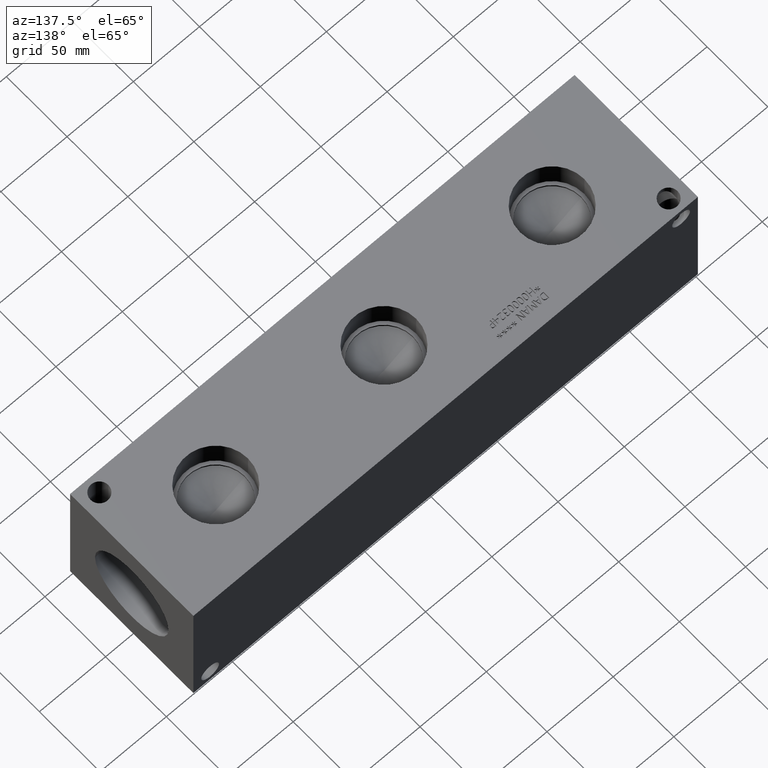
[diagram: clean part render]
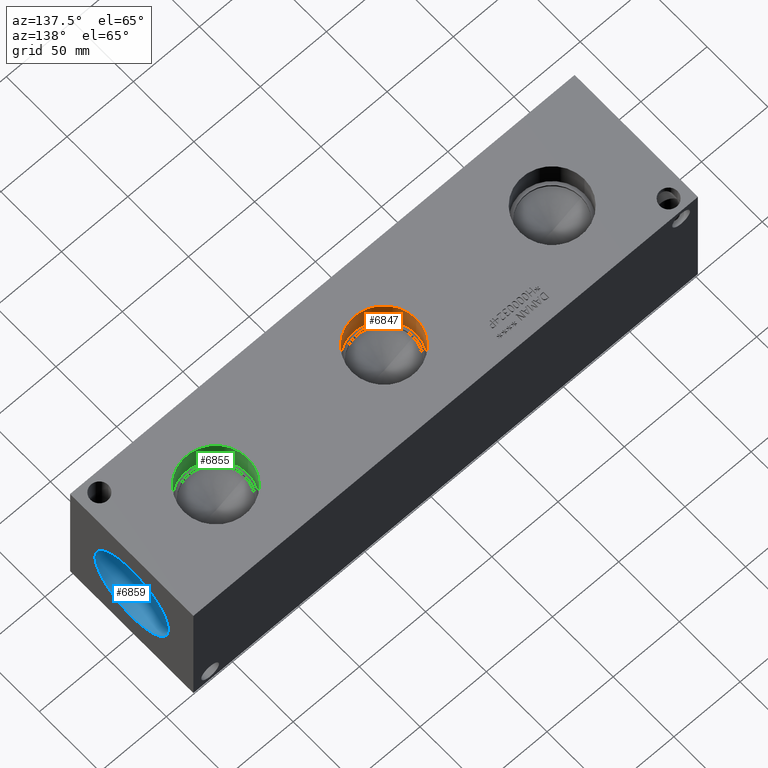
[diagram: same view with three faces highlighted in distinct colors, each labeled with its STEP entity id]
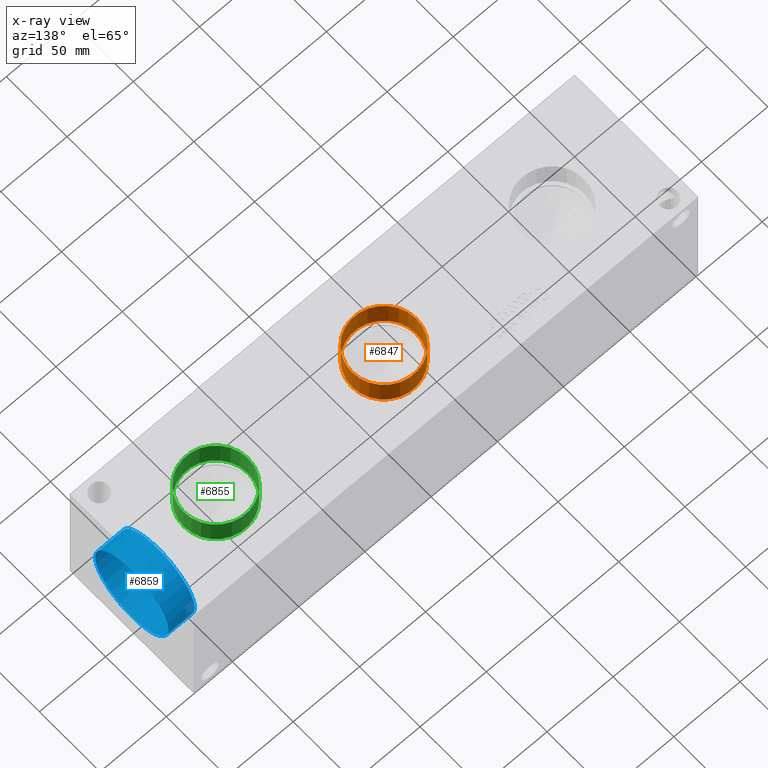
[diagram: x-ray of the same camera — body ghosted, the three highlighted faces saturated]
A machine part, auxiliary view with three faces highlighted in distinct colors.
The next image is the same camera in x-ray (body ghosted, the three faces saturated) — at least one of them is partly hidden behind the body in this view.
Their STEP definitions:

[orange] entity #6847 — the highlighted cylindrical surface (bore or boss wall) has radius 24.2824 mm, axis along (0, 0, 1).
#35=CYLINDRICAL_SURFACE('',#7143,24.2824);
#49=CIRCLE('',#6966,24.2824);
#50=CIRCLE('',#6967,24.2824);
#65=CIRCLE('',#7140,24.2824);
#66=CIRCLE('',#7141,24.2824);
#687=FACE_OUTER_BOUND('',#1066,.T.);
#1066=EDGE_LOOP('',(#6011,#6012,#6013,#6014,#6015,#6016));
#1776=LINE('',#11537,#2472);
#2472=VECTOR('',#8385,24.2824);
#2994=VERTEX_POINT('',#10559);
#2995=VERTEX_POINT('',#10560);
#3277=VERTEX_POINT('',#11530);
#3278=VERTEX_POINT('',#11531);
#3776=EDGE_CURVE('',#2994,#2995,#49,.T.);
#3777=EDGE_CURVE('',#2995,#2994,#50,.T.);
#4202=EDGE_CURVE('',#3277,#3278,#65,.T.);
#4203=EDGE_CURVE('',#3278,#3277,#66,.T.);
#4205=EDGE_CURVE('',#2995,#3278,#1776,.T.);
#6011=ORIENTED_EDGE('',*,*,#3776,.F.);
#6012=ORIENTED_EDGE('',*,*,#3777,.F.);
#6013=ORIENTED_EDGE('',*,*,#4205,.T.);
#6014=ORIENTED_EDGE('',*,*,#4202,.F.);
#6015=ORIENTED_EDGE('',*,*,#4203,.F.);
#6016=ORIENTED_EDGE('',*,*,#4205,.F.);
#6847=ADVANCED_FACE('',(#687),#35,.F.);
#6966=AXIS2_PLACEMENT_3D('',#10561,#7643,#7644);
#6967=AXIS2_PLACEMENT_3D('',#10562,#7645,#7646);
#7140=AXIS2_PLACEMENT_3D('',#11532,#8377,#8378);
#7141=AXIS2_PLACEMENT_3D('',#11533,#8379,#8380);
#7143=AXIS2_PLACEMENT_3D('',#11536,#8383,#8384);
#7643=DIRECTION('center_axis',(0.,0.,-1.));
#7644=DIRECTION('ref_axis',(1.,0.,0.));
#7645=DIRECTION('center_axis',(0.,0.,-1.));
#7646=DIRECTION('ref_axis',(1.,0.,0.));
#8377=DIRECTION('center_axis',(0.,0.,1.));
#8378=DIRECTION('ref_axis',(1.,0.,0.));
#8379=DIRECTION('center_axis',(0.,0.,1.));
#8380=DIRECTION('ref_axis',(1.,0.,0.));
#8383=DIRECTION('center_axis',(0.,0.,1.));
#8384=DIRECTION('ref_axis',(1.,0.,0.));
#8385=DIRECTION('',(0.,0.,-1.));
#10559=CARTESIAN_POINT('',(214.7824,50.8,101.6));
#10560=CARTESIAN_POINT('',(166.2176,50.8,101.6));
#10561=CARTESIAN_POINT('Origin',(190.5,50.8,101.6));
#10562=CARTESIAN_POINT('Origin',(190.5,50.8,101.6));
#11530=CARTESIAN_POINT('',(214.7824,50.8,82.0928));
#11531=CARTESIAN_POINT('',(166.2176,50.8,82.0928));
#11532=CARTESIAN_POINT('Origin',(190.5,50.8,82.0928));
#11533=CARTESIAN_POINT('Origin',(190.5,50.8,82.0928));
#11536=CARTESIAN_POINT('Origin',(190.5,50.8,91.8464));
#11537=CARTESIAN_POINT('',(166.2176,50.8,91.8464));

[blue] entity #6859 — the highlighted cylindrical surface (bore or boss wall) has radius 30.3149 mm, axis along (1, 0, 0).
#41=CYLINDRICAL_SURFACE('',#7170,30.3149);
#80=CIRCLE('',#7167,30.3149);
#81=CIRCLE('',#7168,30.3149);
#83=CIRCLE('',#7171,30.3149);
#84=CIRCLE('',#7172,30.3149);
#699=FACE_OUTER_BOUND('',#1081,.T.);
#1081=EDGE_LOOP('',(#6065,#6066,#6067,#6068,#6069,#6070));
#1785=LINE('',#11595,#2481);
#2481=VECTOR('',#8452,30.3149);
#3295=VERTEX_POINT('',#11584);
#3296=VERTEX_POINT('',#11585);
#3298=VERTEX_POINT('',#11591);
#3299=VERTEX_POINT('',#11592);
#4226=EDGE_CURVE('',#3295,#3296,#80,.T.);
#4227=EDGE_CURVE('',#3296,#3295,#81,.T.);
#4229=EDGE_CURVE('',#3298,#3299,#83,.T.);
#4230=EDGE_CURVE('',#3299,#3298,#84,.T.);
#4231=EDGE_CURVE('',#3299,#3296,#1785,.T.);
#6065=ORIENTED_EDGE('',*,*,#4229,.F.);
#6066=ORIENTED_EDGE('',*,*,#4230,.F.);
#6067=ORIENTED_EDGE('',*,*,#4231,.T.);
#6068=ORIENTED_EDGE('',*,*,#4226,.F.);
#6069=ORIENTED_EDGE('',*,*,#4227,.F.);
#6070=ORIENTED_EDGE('',*,*,#4231,.F.);
#6859=ADVANCED_FACE('',(#699),#41,.F.);
#7167=AXIS2_PLACEMENT_3D('',#11586,#8440,#8441);
#7168=AXIS2_PLACEMENT_3D('',#11587,#8442,#8443);
#7170=AXIS2_PLACEMENT_3D('',#11590,#8446,#8447);
#7171=AXIS2_PLACEMENT_3D('',#11593,#8448,#8449);
#7172=AXIS2_PLACEMENT_3D('',#11594,#8450,#8451);
#8440=DIRECTION('center_axis',(1.,0.,0.));
#8441=DIRECTION('ref_axis',(0.,1.,0.));
#8442=DIRECTION('center_axis',(1.,0.,0.));
#8443=DIRECTION('ref_axis',(0.,1.,0.));
#8446=DIRECTION('center_axis',(1.,0.,0.));
#8447=DIRECTION('ref_axis',(0.,1.,0.));
#8448=DIRECTION('center_axis',(-1.,0.,0.));
#8449=DIRECTION('ref_axis',(0.,1.,0.));
#8450=DIRECTION('center_axis',(-1.,0.,0.));
#8451=DIRECTION('ref_axis',(0.,1.,0.));
#8452=DIRECTION('',(-1.,0.,0.));
#11584=CARTESIAN_POINT('',(361.0864,81.1149,50.8));
#11585=CARTESIAN_POINT('',(361.0864,20.4851,50.8));
#11586=CARTESIAN_POINT('Origin',(361.0864,50.8,50.8));
#11587=CARTESIAN_POINT('Origin',(361.0864,50.8,50.8));
#11590=CARTESIAN_POINT('Origin',(371.0432,50.8,50.8));
#11591=CARTESIAN_POINT('',(381.,81.1149,50.8));
#11592=CARTESIAN_POINT('',(381.,20.4851,50.8));
#11593=CARTESIAN_POINT('Origin',(381.,50.8,50.8));
#11594=CARTESIAN_POINT('Origin',(381.,50.8,50.8));
#11595=CARTESIAN_POINT('',(371.0432,20.4851,50.8));

[green] entity #6855 — the highlighted cylindrical surface (bore or boss wall) has radius 24.2824 mm, axis along (0, 0, 1).
#39=CYLINDRICAL_SURFACE('',#7161,24.2824);
#45=CIRCLE('',#6962,24.2824);
#46=CIRCLE('',#6963,24.2824);
#75=CIRCLE('',#7158,24.2824);
#76=CIRCLE('',#7159,24.2824);
#695=FACE_OUTER_BOUND('',#1076,.T.);
#1076=EDGE_LOOP('',(#6047,#6048,#6049,#6050,#6051,#6052));
#1782=LINE('',#11573,#2478);
#2478=VECTOR('',#8427,24.2824);
#2990=VERTEX_POINT('',#10551);
#2991=VERTEX_POINT('',#10552);
#3289=VERTEX_POINT('',#11566);
#3290=VERTEX_POINT('',#11567);
#3772=EDGE_CURVE('',#2990,#2991,#45,.T.);
#3773=EDGE_CURVE('',#2991,#2990,#46,.T.);
#4218=EDGE_CURVE('',#3289,#3290,#75,.T.);
#4219=EDGE_CURVE('',#3290,#3289,#76,.T.);
#4221=EDGE_CURVE('',#2991,#3290,#1782,.T.);
#6047=ORIENTED_EDGE('',*,*,#3772,.F.);
#6048=ORIENTED_EDGE('',*,*,#3773,.F.);
#6049=ORIENTED_EDGE('',*,*,#4221,.T.);
#6050=ORIENTED_EDGE('',*,*,#4218,.F.);
#6051=ORIENTED_EDGE('',*,*,#4219,.F.);
#6052=ORIENTED_EDGE('',*,*,#4221,.F.);
#6855=ADVANCED_FACE('',(#695),#39,.F.);
#6962=AXIS2_PLACEMENT_3D('',#10553,#7635,#7636);
#6963=AXIS2_PLACEMENT_3D('',#10554,#7637,#7638);
#7158=AXIS2_PLACEMENT_3D('',#11568,#8419,#8420);
#7159=AXIS2_PLACEMENT_3D('',#11569,#8421,#8422);
#7161=AXIS2_PLACEMENT_3D('',#11572,#8425,#8426);
#7635=DIRECTION('center_axis',(0.,0.,-1.));
#7636=DIRECTION('ref_axis',(1.,0.,0.));
#7637=DIRECTION('center_axis',(0.,0.,-1.));
#7638=DIRECTION('ref_axis',(1.,0.,0.));
#8419=DIRECTION('center_axis',(0.,0.,1.));
#8420=DIRECTION('ref_axis',(1.,0.,0.));
#8421=DIRECTION('center_axis',(0.,0.,1.));
#8422=DIRECTION('ref_axis',(1.,0.,0.));
#8425=DIRECTION('center_axis',(0.,0.,1.));
#8426=DIRECTION('ref_axis',(1.,0.,0.));
#8427=DIRECTION('',(0.,0.,-1.));
#10551=CARTESIAN_POINT('',(341.7824,50.8,101.6));
#10552=CARTESIAN_POINT('',(293.2176,50.8,101.6));
#10553=CARTESIAN_POINT('Origin',(317.5,50.8,101.6));
#10554=CARTESIAN_POINT('Origin',(317.5,50.8,101.6));
#11566=CARTESIAN_POINT('',(341.7824,50.8,82.0928));
#11567=CARTESIAN_POINT('',(293.2176,50.8,82.0928));
#11568=CARTESIAN_POINT('Origin',(317.5,50.8,82.0928));
#11569=CARTESIAN_POINT('Origin',(317.5,50.8,82.0928));
#11572=CARTESIAN_POINT('Origin',(317.5,50.8,91.8464));
#11573=CARTESIAN_POINT('',(293.2176,50.8,91.8464));